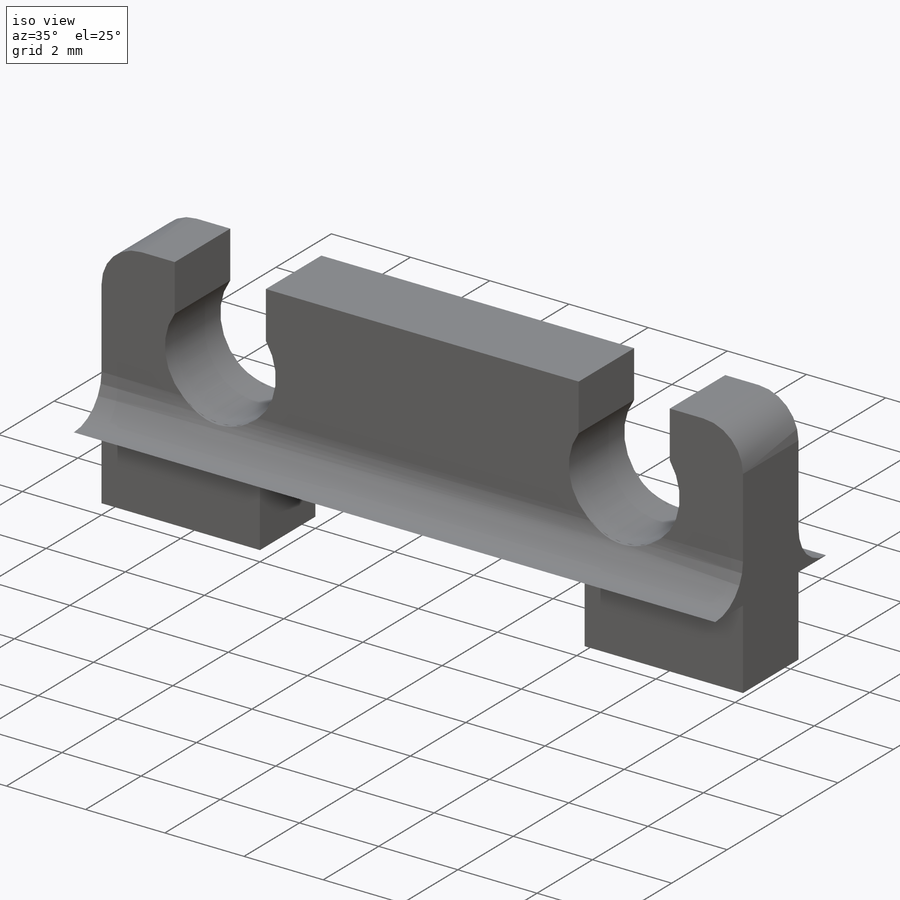
[diagram: iso view]
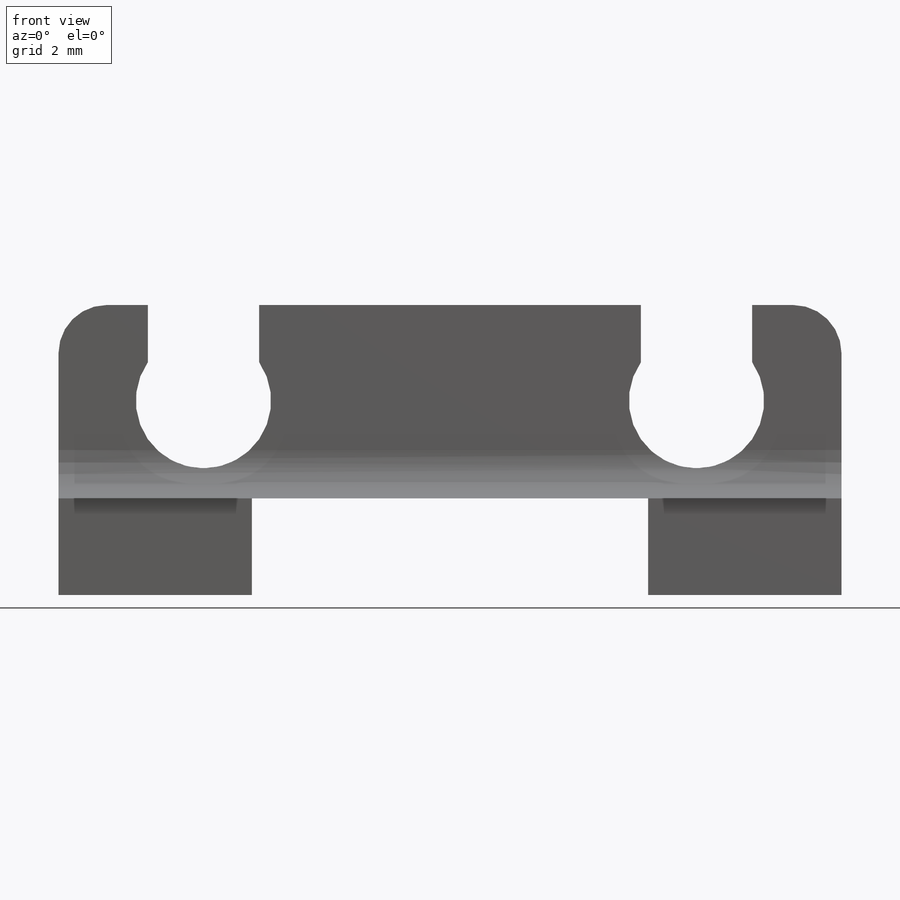
[diagram: front view]
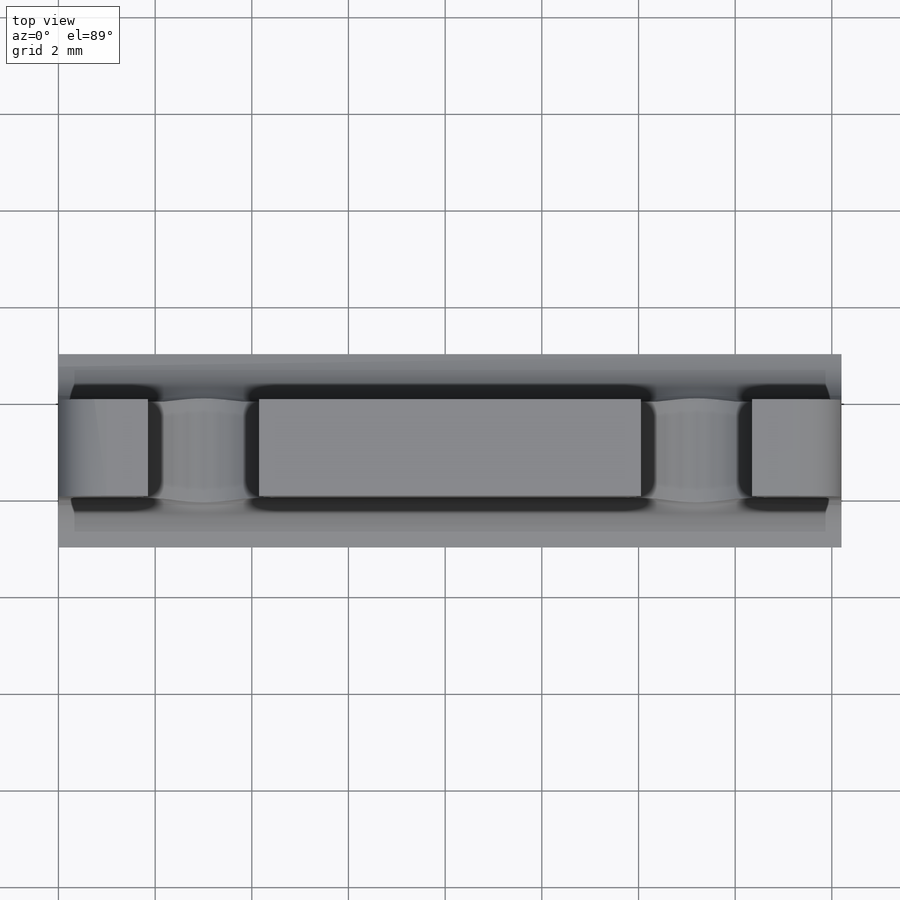
[diagram: top view]
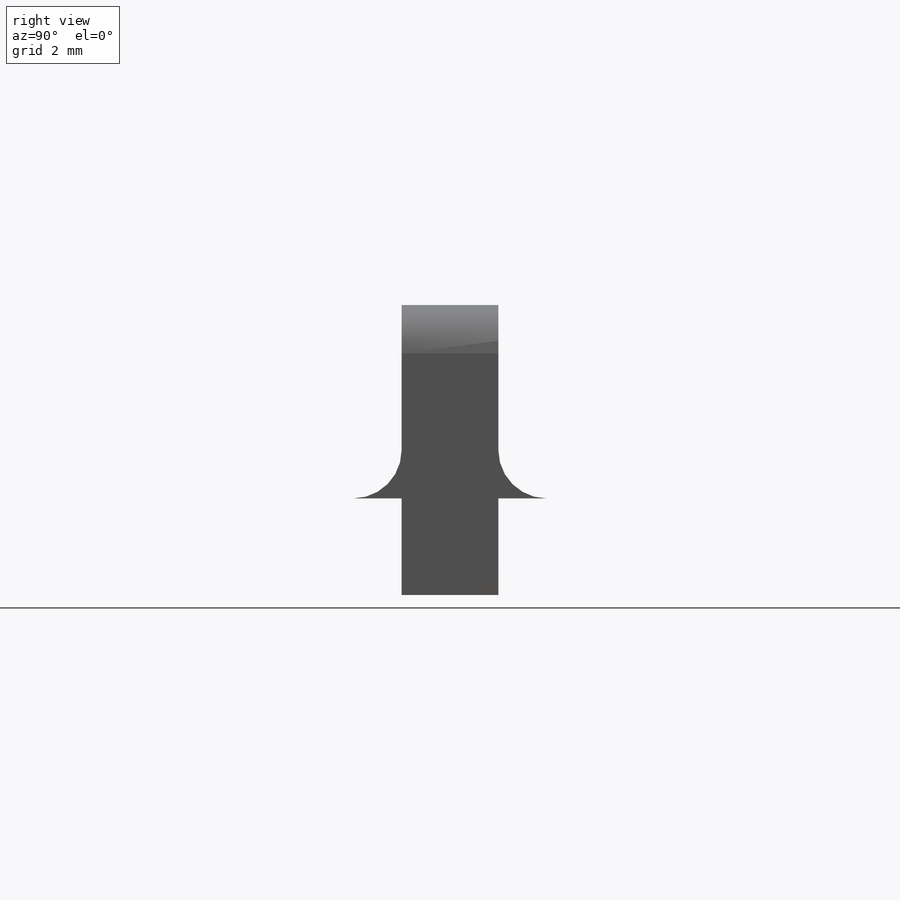
[diagram: right view]
SOLIDWORKS PART (.sldprt)
format: sldprt  version: not decoded by parser v0  size: 313,856 bytes
history: native  units: mm
features: sketch x5, cut_extrude x3, extrude x2, material x1, plane x1 (+13 scaffold rows collapsed)
feature tree (25):
  scaffold x13  (default folders/planes/origin — collapsed)
  material  "Material <not specified>"
  sketch  "Sketch1"  dims[c1.D1=1.45mm c1.D2=1.0mm c1.D3=3.0mm c1.D4=4.0mm c1.D5=8.1mm c2.D3=3.0mm c2.D4=2.0mm c2.D6=4.25mm c2.D7=6.0mm c3.D4=4.0mm c3.D6=1.0mm c3.D7=1.0mm c3.D8=1.0mm]
  extrude  "Boss-Extrude1"  Depth=2mm
  sketch  "Sketch2"  dims[D2=1.0mm D1=4.0mm]
  extrude  "Boss-Extrude2"  Depth=16.2mm
  sketch  "Sketch3"  dims[D1=2.0mm]
  cut_extrude  "Cut-Extrude1"  [1 undecoded]
  sketch  "Sketch5"  dims[D1=1.2mm]
  cut_extrude  "Cut-Extrude4"  Depth=2mm
  plane  "Plane1"  Offset=1mm
  sketch  "Sketch8"  dims[D1=2.9mm]
  cut_extrude  "Cut-Extrude6"  Depth=10mm
decode coverage: 9 of 10 modeling features carry decoded parameters
note: 1 parameter value undecoded
note: suppression state not decoded; provenance and decode notes live in map.json
